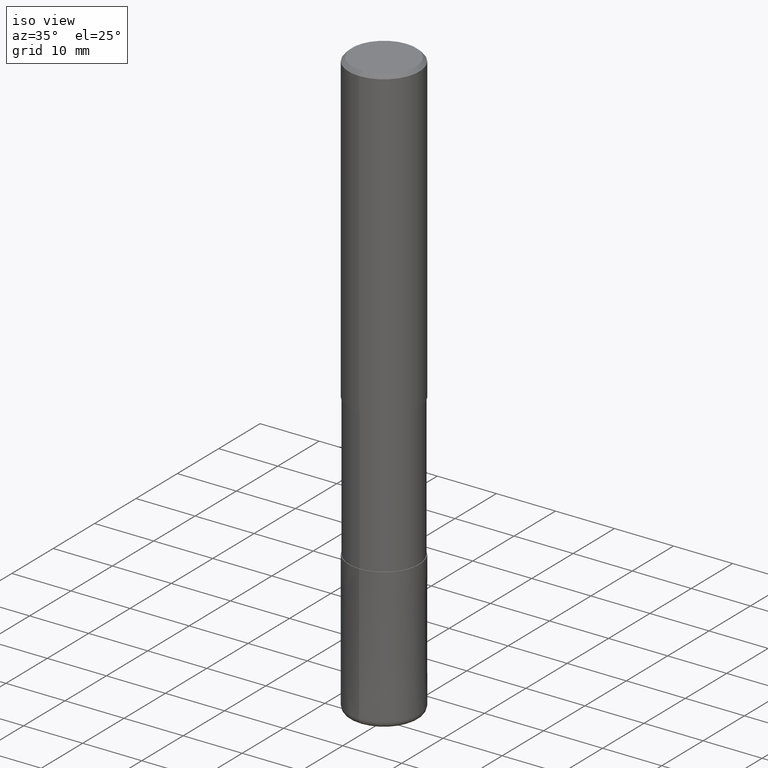
[diagram: clean part render]
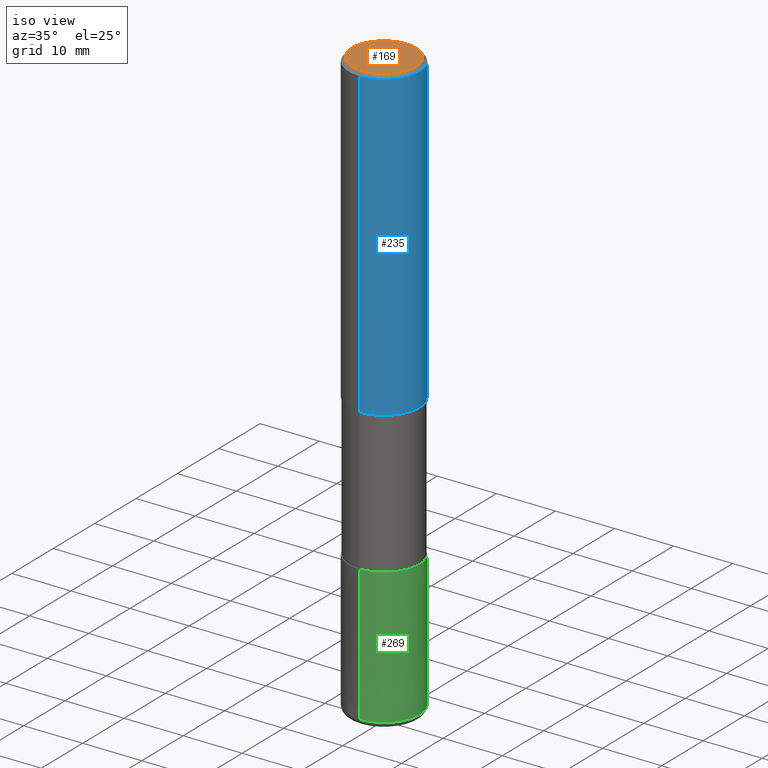
[diagram: same view with three faces highlighted in distinct colors, each labeled with its STEP entity id]
A machine part, iso view with three faces highlighted in distinct colors.
Their STEP definitions:

[orange] entity #169 — the highlighted planar face has unit normal (-0, 0, 1).
#155=VERTEX_POINT('',#345);
#169=ADVANCED_FACE('',(#361),#362,.T.);
#203=EDGE_CURVE('',#255,#155,#401,.T.);
#243=EDGE_CURVE('',#155,#255,#450,.T.);
#255=VERTEX_POINT('',#462);
#345=CARTESIAN_POINT('',(0.0,5.4,0.0));
#361=FACE_OUTER_BOUND('',#580,.T.);
#362=PLANE('',#581);
#401=CIRCLE('',#626,5.4);
#450=CIRCLE('',#689,5.4);
#462=CARTESIAN_POINT('',(6.61287431064084E-016,-5.4,0.0));
#580=EDGE_LOOP('',(#808,#809));
#581=AXIS2_PLACEMENT_3D('',#810,#811,#812);
#626=AXIS2_PLACEMENT_3D('',#855,#856,#857);
#689=AXIS2_PLACEMENT_3D('',#937,#938,#939);
#808=ORIENTED_EDGE('',*,*,#243,.F.);
#809=ORIENTED_EDGE('',*,*,#203,.F.);
#810=CARTESIAN_POINT('',(0.0,2.7,0.0));
#811=DIRECTION('',(-0.0,0.0,1.0));
#812=DIRECTION('',(0.0,-1.0,0.0));
#855=CARTESIAN_POINT('',(0.0,0.0,0.0));
#856=DIRECTION('',(0.0,0.0,-1.0));
#857=DIRECTION('',(0.0,1.0,0.0));
#937=CARTESIAN_POINT('',(0.0,0.0,0.0));
#938=DIRECTION('',(0.0,0.0,-1.0));
#939=DIRECTION('',(0.0,1.0,0.0));

[blue] entity #235 — the highlighted cylindrical surface (partial cylindrical patch) has radius 6 mm, axis along (-0, -0, 1).
#127=EDGE_CURVE('',#147,#159,#315,.T.);
#139=VERTEX_POINT('',#327);
#147=VERTEX_POINT('',#337);
#151=EDGE_CURVE('',#139,#147,#341,.T.);
#159=VERTEX_POINT('',#350);
#191=EDGE_CURVE('',#159,#251,#388,.T.);
#235=ADVANCED_FACE('',(#441),#442,.T.);
#251=VERTEX_POINT('',#458);
#279=EDGE_CURVE('',#139,#251,#490,.T.);
#315=CIRCLE('',#523,6.0);
#327=CARTESIAN_POINT('',(0.0,6.0,-0.600000000000001));
#337=CARTESIAN_POINT('',(0.0,6.0,-52.0));
#341=LINE('',#556,#557);
#350=CARTESIAN_POINT('',(7.34763812293426E-016,-6.0,-52.0));
#388=LINE('',#610,#611);
#441=FACE_OUTER_BOUND('',#676,.T.);
#442=CYLINDRICAL_SURFACE('',#677,6.0);
#458=CARTESIAN_POINT('',(7.34763812293426E-016,-6.0,-0.600000000000001));
#490=CIRCLE('',#738,6.0);
#523=AXIS2_PLACEMENT_3D('',#762,#763,#764);
#556=CARTESIAN_POINT('',(-7.34763812293426E-016,6.0,-26.3));
#557=VECTOR('',#786,1.0);
#610=CARTESIAN_POINT('',(7.34763812293426E-016,-6.0,-26.3));
#611=VECTOR('',#843,1.0);
#676=EDGE_LOOP('',(#926,#927,#928,#929));
#677=AXIS2_PLACEMENT_3D('',#930,#931,#932);
#738=AXIS2_PLACEMENT_3D('',#988,#989,#990);
#762=CARTESIAN_POINT('',(0.0,0.0,-52.0));
#763=DIRECTION('',(0.0,0.0,-1.0));
#764=DIRECTION('',(0.0,1.0,0.0));
#786=DIRECTION('',(0.0,0.0,-1.0));
#843=DIRECTION('',(-0.0,-0.0,1.0));
#926=ORIENTED_EDGE('',*,*,#151,.F.);
#927=ORIENTED_EDGE('',*,*,#279,.T.);
#928=ORIENTED_EDGE('',*,*,#191,.F.);
#929=ORIENTED_EDGE('',*,*,#127,.F.);
#930=CARTESIAN_POINT('',(0.0,0.0,-26.3));
#931=DIRECTION('',(-0.0,-0.0,1.0));
#932=DIRECTION('',(0.0,1.0,0.0));
#988=CARTESIAN_POINT('',(0.0,0.0,-0.600000000000001));
#989=DIRECTION('',(0.0,0.0,-1.0));
#990=DIRECTION('',(0.0,1.0,0.0));

[green] entity #269 — the highlighted conical surface has half-angle 0 deg.
#119=EDGE_CURVE('',#261,#245,#307,.T.);
#129=VERTEX_POINT('',#317);
#197=VERTEX_POINT('',#395);
#209=EDGE_CURVE('',#261,#129,#410,.T.);
#245=VERTEX_POINT('',#452);
#261=VERTEX_POINT('',#469);
#269=ADVANCED_FACE('',(#479),#480,.T.);
#277=EDGE_CURVE('',#245,#197,#488,.T.);
#283=EDGE_CURVE('',#197,#129,#494,.T.);
#307=LINE('',#511,#512);
#317=CARTESIAN_POINT('',(7.34751566229888E-016,-5.9999,-76.0));
#395=CARTESIAN_POINT('',(7.34763812293426E-016,-6.0,-99.0));
#410=CIRCLE('',#636,5.9999);
#452=CARTESIAN_POINT('',(0.0,6.0,-99.0));
#469=CARTESIAN_POINT('',(0.0,5.9999,-76.0));
#479=FACE_OUTER_BOUND('',#725,.T.);
#480=CONICAL_SURFACE('',#726,5.99995,4.34782608691899E-006);
#488=CIRCLE('',#735,6.0);
#494=LINE('',#744,#745);
#511=CARTESIAN_POINT('',(-7.34757689261657E-016,5.99995,-87.5));
#512=VECTOR('',#755,1.0);
#636=AXIS2_PLACEMENT_3D('',#874,#875,#876);
#725=EDGE_LOOP('',(#974,#975,#976,#977));
#726=AXIS2_PLACEMENT_3D('',#978,#979,#980);
#735=AXIS2_PLACEMENT_3D('',#985,#986,#987);
#744=CARTESIAN_POINT('',(7.34757689261657E-016,-5.99995,-87.5));
#745=VECTOR('',#994,1.0);
#755=DIRECTION('',(-5.32437545133891E-022,4.34782608690529E-006,-0.999999999990548));
#874=CARTESIAN_POINT('',(0.0,0.0,-76.0));
#875=DIRECTION('',(0.0,0.0,-1.0));
#876=DIRECTION('',(0.0,1.0,0.0));
#974=ORIENTED_EDGE('',*,*,#119,.F.);
#975=ORIENTED_EDGE('',*,*,#209,.T.);
#976=ORIENTED_EDGE('',*,*,#283,.F.);
#977=ORIENTED_EDGE('',*,*,#277,.F.);
#978=CARTESIAN_POINT('',(0.0,0.0,-87.5));
#979=DIRECTION('',(0.0,-0.0,-1.0));
#980=DIRECTION('',(0.0,1.0,0.0));
#985=CARTESIAN_POINT('',(0.0,0.0,-99.0));
#986=DIRECTION('',(0.0,0.0,-1.0));
#987=DIRECTION('',(0.0,1.0,0.0));
#994=DIRECTION('',(-5.32437545133891E-022,4.34782608690529E-006,0.999999999990548));